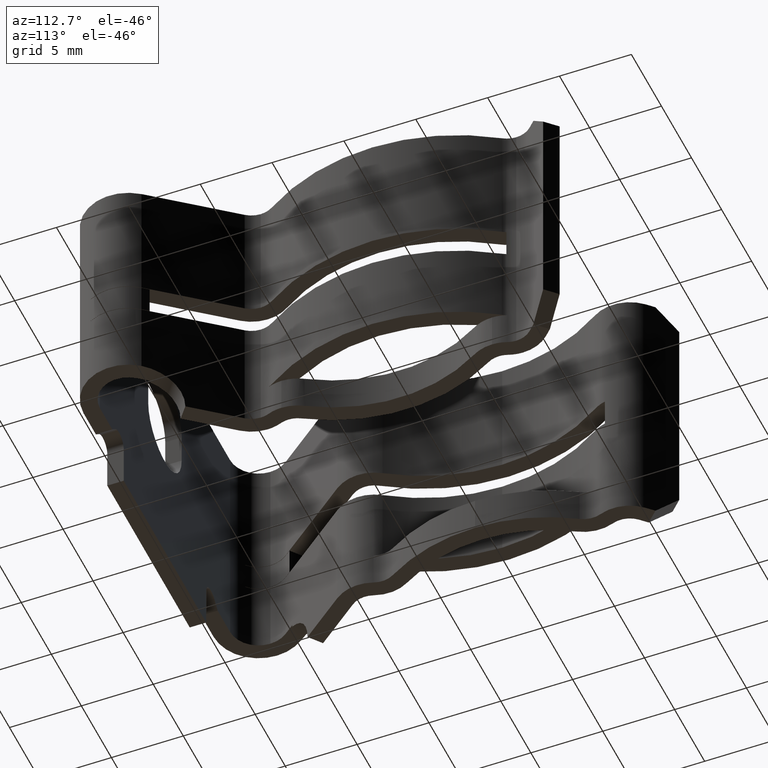
[diagram: clean part render]
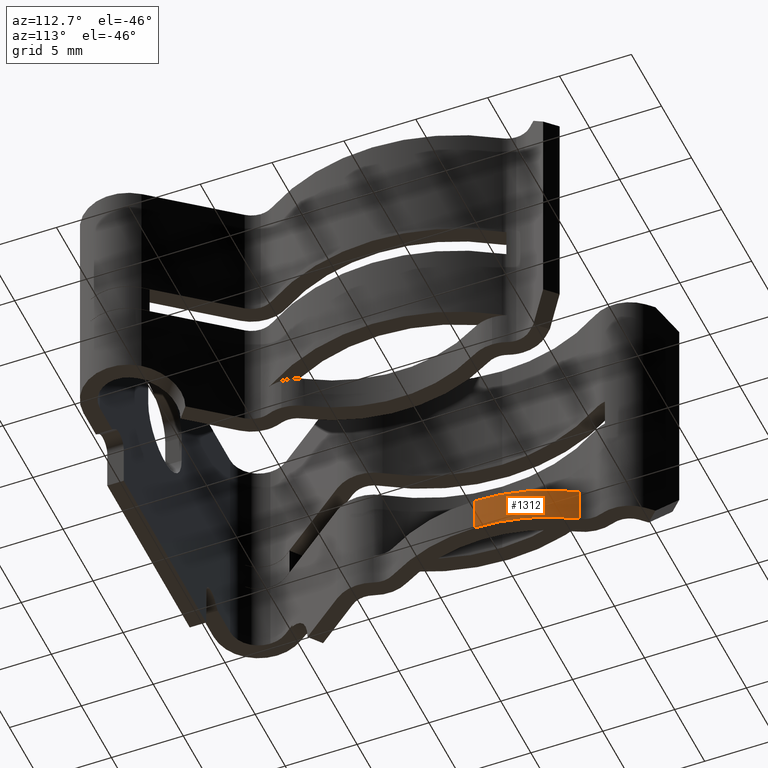
[diagram: same view with one face highlighted and labeled with its STEP entity id]
A machine part, auxiliary view. The second image highlights one B-rep face of the part: STEP entity #1312.
In plain terms, the highlighted cylindrical surface (partial cylindrical patch) has radius 12.2682 mm, axis along (0, 0, 1).
Its self-contained STEP definition (entity closure, byte-faithful):
#346 = CARTESIAN_POINT ( 'NONE',  ( -0.2982041513747098500, 1.010648904651434600, -1.572671744126690600 ) ) ;
#448 = EDGE_CURVE ( 'NONE', #4446, #2307, #3296, .T. ) ;
#561 = CARTESIAN_POINT ( 'NONE',  ( -0.7079999999999999600, 0.7550000000000000000, -1.572671744126690600 ) ) ;
#580 = DIRECTION ( 'NONE',  ( 1.000000000000000000, 0.0000000000000000000, 0.0000000000000000000 ) ) ;
#667 = DIRECTION ( 'NONE',  ( 0.0000000000000000000, 0.0000000000000000000, 1.000000000000000000 ) ) ;
#904 = EDGE_CURVE ( 'NONE', #2703, #4446, #2793, .T. ) ;
#983 = VECTOR ( 'NONE', #2704, 39.37007874015748100 ) ;
#1312 = ADVANCED_FACE ( 'NONE', ( #1500 ), #1387, .T. ) ;
#1387 = CYLINDRICAL_SURFACE ( 'NONE', #2868, 0.4829999999999999300 ) ;
#1416 = CARTESIAN_POINT ( 'NONE',  ( -0.7079999999999999600, 0.7550000000000000000, -0.6220000000000000000 ) ) ;
#1500 = FACE_OUTER_BOUND ( 'NONE', #2444, .T. ) ;
#1602 = EDGE_CURVE ( 'NONE', #2703, #2337, #2783, .T. ) ;
#1605 = DIRECTION ( 'NONE',  ( -1.000000000000000000, 0.0000000000000000000, 0.0000000000000000000 ) ) ;
#1622 = CARTESIAN_POINT ( 'NONE',  ( -0.7079999999999999600, 0.7550000000000000000, -0.7199999999999999700 ) ) ;
#1646 = CARTESIAN_POINT ( 'NONE',  ( -0.2249999999999999800, 0.7550000000000000000, -0.6220000000000000000 ) ) ;
#1650 = DIRECTION ( 'NONE',  ( 0.0000000000000000000, 0.0000000000000000000, 1.000000000000000000 ) ) ;
#1876 = AXIS2_PLACEMENT_3D ( 'NONE', #1416, #1650, #580 ) ;
#1890 = LINE ( 'NONE', #346, #3694 ) ;
#2205 = AXIS2_PLACEMENT_3D ( 'NONE', #1622, #3059, #1605 ) ;
#2307 = VERTEX_POINT ( 'NONE', #4145 ) ;
#2337 = VERTEX_POINT ( 'NONE', #3787 ) ;
#2444 = EDGE_LOOP ( 'NONE', ( #3336, #3391, #3456, #3505 ) ) ;
#2699 = CARTESIAN_POINT ( 'NONE',  ( -0.2249999999999999800, 0.7550000000000000000, -1.572671744126690600 ) ) ;
#2703 = VERTEX_POINT ( 'NONE', #3463 ) ;
#2704 = DIRECTION ( 'NONE',  ( 0.0000000000000000000, 0.0000000000000000000, 1.000000000000000000 ) ) ;
#2783 = CIRCLE ( 'NONE', #2205, 0.4829999999999999800 ) ;
#2793 = LINE ( 'NONE', #2699, #983 ) ;
#2868 = AXIS2_PLACEMENT_3D ( 'NONE', #561, #3332, #3249 ) ;
#3059 = DIRECTION ( 'NONE',  ( 0.0000000000000000000, 0.0000000000000000000, 1.000000000000000000 ) ) ;
#3249 = DIRECTION ( 'NONE',  ( 1.000000000000000000, 0.0000000000000000000, 0.0000000000000000000 ) ) ;
#3296 = CIRCLE ( 'NONE', #1876, 0.4829999999999999300 ) ;
#3332 = DIRECTION ( 'NONE',  ( 0.0000000000000000000, 0.0000000000000000000, 1.000000000000000000 ) ) ;
#3336 = ORIENTED_EDGE ( 'NONE', *, *, #904, .F. ) ;
#3391 = ORIENTED_EDGE ( 'NONE', *, *, #1602, .T. ) ;
#3456 = ORIENTED_EDGE ( 'NONE', *, *, #3682, .T. ) ;
#3463 = CARTESIAN_POINT ( 'NONE',  ( -0.2249999999999999800, 0.7550000000000000000, -0.7199999999999999700 ) ) ;
#3505 = ORIENTED_EDGE ( 'NONE', *, *, #448, .F. ) ;
#3682 = EDGE_CURVE ( 'NONE', #2337, #2307, #1890, .T. ) ;
#3694 = VECTOR ( 'NONE', #667, 39.37007874015748100 ) ;
#3787 = CARTESIAN_POINT ( 'NONE',  ( -0.2982041513747098500, 1.010648904651434600, -0.7199999999999999700 ) ) ;
#4145 = CARTESIAN_POINT ( 'NONE',  ( -0.2982041513747098500, 1.010648904651434600, -0.6220000000000000000 ) ) ;
#4446 = VERTEX_POINT ( 'NONE', #1646 ) ;